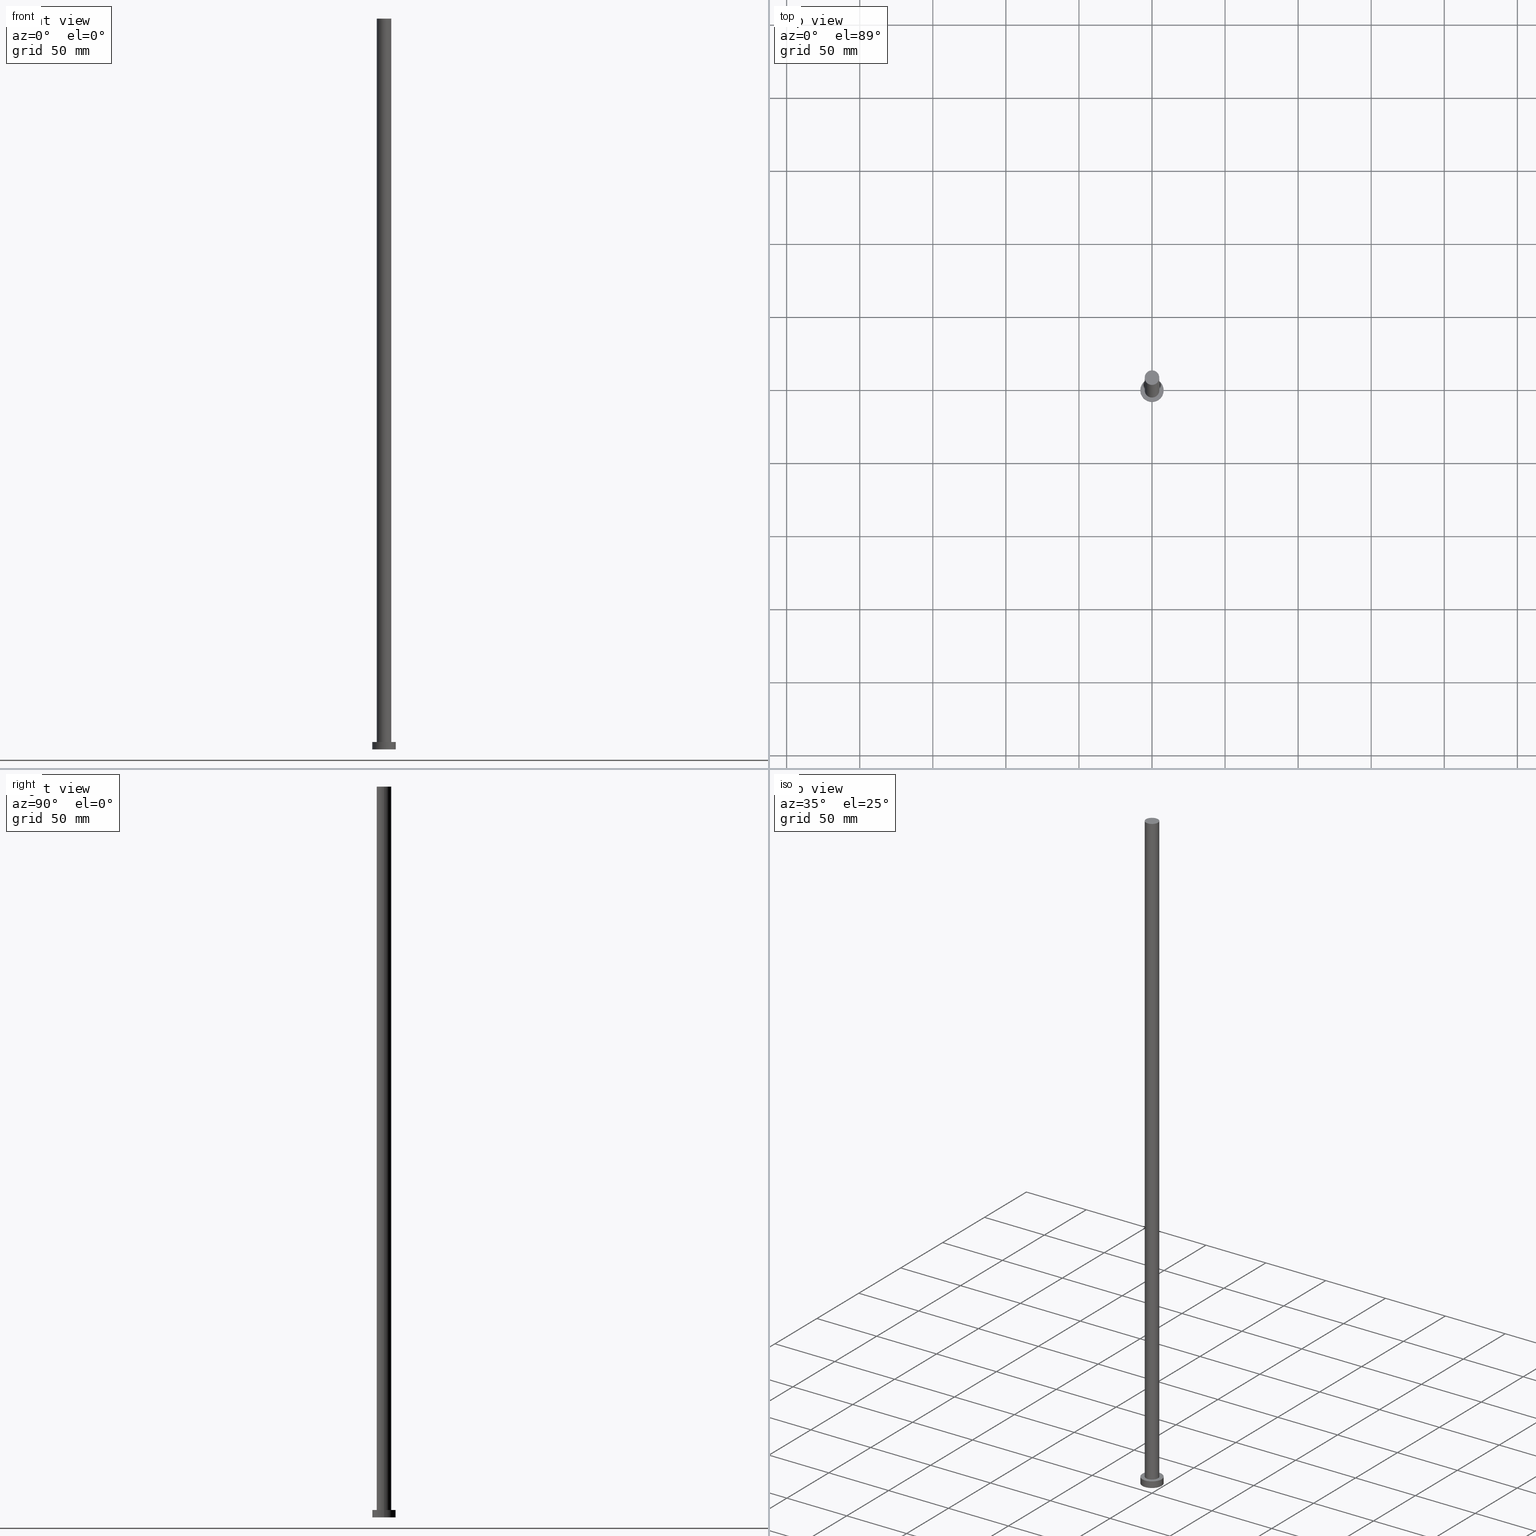
[diagram: canonical four-view strip — front | top / right | iso, engineering-drawing reading convention]
A machine part, canonical four-view strip (front | top / right | iso — engineering-drawing reading convention). The complete STEP part file that produces these views, byte-faithful:
ISO-10303-21;
HEADER;
FILE_DESCRIPTION (( 'STEP AP203' ),
    '1' );
FILE_NAME ('5d48.STEP',
    '2023-02-13T13:16:48',
    ( '' ),
    ( '' ),
    'SwSTEP 2.0',
    'SolidWorks 2019',
    '' );
FILE_SCHEMA (( 'CONFIG_CONTROL_DESIGN' ));
ENDSEC;

DATA;
#1 = PERSON_AND_ORGANIZATION ( #9, #190 ) ;
#2 = EDGE_CURVE ( 'NONE', #209, #253, #94, .T. ) ;
#3 = CALENDAR_DATE ( 2023, 13, 2 ) ;
#4 = CIRCLE ( 'NONE', #146, 5.000000000000000000 ) ;
#5 = FACE_OUTER_BOUND ( 'NONE', #140, .T. ) ;
#6 = SECURITY_CLASSIFICATION_LEVEL ( 'unclassified' ) ;
#7 = LINE ( 'NONE', #175, #214 ) ;
#8 = DIRECTION ( 'NONE',  ( 1.000000000000000000, 0.000000000000000000, 0.000000000000000000 ) ) ;
#9 = PERSON ( 'NEUR�EN�', 'NEUR�EN�', 'NEUR�EN�', ('NEUR�EN�'), ('NEUR�EN�'), ('NEUR�EN�') ) ;
#10 = CARTESIAN_POINT ( 'NONE',  ( 0.000000000000000000, 0.000000000000000000, 500.0000000000000000 ) ) ;
#11 = AXIS2_PLACEMENT_3D ( 'NONE', #196, #234, #8 ) ;
#12 = EDGE_CURVE ( 'NONE', #209, #73, #177, .T. ) ;
#13 = DIRECTION ( 'NONE',  ( 0.000000000000000000, 0.000000000000000000, 1.000000000000000000 ) ) ;
#14 = CYLINDRICAL_SURFACE ( 'NONE', #78, 8.000000000000000000 ) ;
#15 = DIRECTION ( 'NONE',  ( 1.000000000000000000, 0.000000000000000000, 0.000000000000000000 ) ) ;
#16 = ADVANCED_FACE ( 'NONE', ( #210 ), #32, .T. ) ;
#17 = EDGE_LOOP ( 'NONE', ( #181, #29 ) ) ;
#18 = ORIENTED_EDGE ( 'NONE', *, *, #212, .T. ) ;
#19 = CARTESIAN_POINT ( 'NONE',  ( 0.000000000000000000, 0.000000000000000000, 0.000000000000000000 ) ) ;
#20 = ORIENTED_EDGE ( 'NONE', *, *, #25, .F. ) ;
#21 = APPROVAL_DATE_TIME ( #204, #251 ) ;
#22 = DIRECTION ( 'NONE',  ( 0.000000000000000000, 0.000000000000000000, 1.000000000000000000 ) ) ;
#23 = PERSON_AND_ORGANIZATION_ROLE ( 'design_supplier' ) ;
#24 = DIRECTION ( 'NONE',  ( -0.000000000000000000, -0.000000000000000000, -1.000000000000000000 ) ) ;
#25 = EDGE_CURVE ( 'NONE', #73, #243, #7, .T. ) ;
#26 = AXIS2_PLACEMENT_3D ( 'NONE', #163, #45, #254 ) ;
#27 = DATE_TIME_ROLE ( 'creation_date' ) ;
#28 = PERSON_AND_ORGANIZATION ( #9, #190 ) ;
#29 = ORIENTED_EDGE ( 'NONE', *, *, #150, .T. ) ;
#30 = DIRECTION ( 'NONE',  ( -0.000000000000000000, -0.000000000000000000, -1.000000000000000000 ) ) ;
#31 = CIRCLE ( 'NONE', #43, 5.000000000000000000 ) ;
#32 = CYLINDRICAL_SURFACE ( 'NONE', #244, 8.000000000000000000 ) ;
#33 = PRODUCT ( '5d48', '5d48', '', ( #237 ) ) ;
#34 = DIRECTION ( 'NONE',  ( -0.000000000000000000, -0.000000000000000000, -1.000000000000000000 ) ) ;
#35 = CYLINDRICAL_SURFACE ( 'NONE', #250, 5.000000000000000000 ) ;
#36 = CARTESIAN_POINT ( 'NONE',  ( 0.000000000000000000, 0.000000000000000000, 5.000000000000000000 ) ) ;
#37 = VECTOR ( 'NONE', #34, 1000.000000000000000 ) ;
#38 = CYLINDRICAL_SURFACE ( 'NONE', #122, 5.000000000000000000 ) ;
#39 = VERTEX_POINT ( 'NONE', #134 ) ;
#40 = APPLICATION_PROTOCOL_DEFINITION ( 'international standard', 'config_control_design', 1994, #166 ) ;
#41 = VERTEX_POINT ( 'NONE', #110 ) ;
#42 = DIRECTION ( 'NONE',  ( -1.000000000000000000, 0.000000000000000000, 0.000000000000000000 ) ) ;
#43 = AXIS2_PLACEMENT_3D ( 'NONE', #199, #105, #61 ) ;
#44 = AXIS2_PLACEMENT_3D ( 'NONE', #82, #158, #197 ) ;
#45 = DIRECTION ( 'NONE',  ( 0.000000000000000000, 0.000000000000000000, 1.000000000000000000 ) ) ;
#46 = ADVANCED_FACE ( 'NONE', ( #5 ), #14, .T. ) ;
#47 = DIRECTION ( 'NONE',  ( 0.000000000000000000, 0.000000000000000000, 1.000000000000000000 ) ) ;
#48 = APPROVAL_ROLE ( '' ) ;
#49 = CIRCLE ( 'NONE', #229, 8.000000000000000000 ) ;
#50 = CC_DESIGN_DATE_AND_TIME_ASSIGNMENT ( #91, #27, ( #108 ) ) ;
#51 = CALENDAR_DATE ( 2023, 13, 2 ) ;
#52 = VERTEX_POINT ( 'NONE', #249 ) ;
#53 = EDGE_CURVE ( 'NONE', #253, #243, #151, .T. ) ;
#54 = DIRECTION ( 'NONE',  ( 1.000000000000000000, 0.000000000000000000, 0.000000000000000000 ) ) ;
#55 = DIRECTION ( 'NONE',  ( 0.000000000000000000, 0.000000000000000000, 1.000000000000000000 ) ) ;
#56 = DIRECTION ( 'NONE',  ( 0.000000000000000000, 0.000000000000000000, 1.000000000000000000 ) ) ;
#57 = CARTESIAN_POINT ( 'NONE',  ( 0.000000000000000000, 0.000000000000000000, 0.000000000000000000 ) ) ;
#58 = DIRECTION ( 'NONE',  ( -1.000000000000000000, 0.000000000000000000, 0.000000000000000000 ) ) ;
#59 = PRODUCT_DEFINITION_FORMATION_WITH_SPECIFIED_SOURCE ( 'LIBOVOLN�', '', #33, .NOT_KNOWN. ) ;
#60 = PLANE ( 'NONE',  #92 ) ;
#61 = DIRECTION ( 'NONE',  ( 1.000000000000000000, 0.000000000000000000, 0.000000000000000000 ) ) ;
#62 =( LENGTH_UNIT ( ) NAMED_UNIT ( * ) SI_UNIT ( .MILLI., .METRE. ) );
#63 = AXIS2_PLACEMENT_3D ( 'NONE', #75, #47, #54 ) ;
#64 = APPROVAL_PERSON_ORGANIZATION ( #242, #154, #114 ) ;
#65 = DIRECTION ( 'NONE',  ( 0.000000000000000000, 0.000000000000000000, 1.000000000000000000 ) ) ;
#66 = APPROVAL ( #186, 'NEUR�EN�' ) ;
#67 = DATE_AND_TIME ( #231, #131 ) ;
#68 = ORIENTED_EDGE ( 'NONE', *, *, #178, .F. ) ;
#69 = APPROVAL_STATUS ( 'not_yet_approved' ) ;
#70 = ORIENTED_EDGE ( 'NONE', *, *, #25, .T. ) ;
#71 = LOCAL_TIME ( 14, 16, 48.00000000000000000, #72 ) ;
#72 = COORDINATED_UNIVERSAL_TIME_OFFSET ( 1, 0, .AHEAD. ) ;
#73 = VERTEX_POINT ( 'NONE', #194 ) ;
#74 = ADVANCED_FACE ( 'NONE', ( #121 ), #97, .F. ) ;
#75 = CARTESIAN_POINT ( 'NONE',  ( 0.000000000000000000, 0.000000000000000000, 500.0000000000000000 ) ) ;
#76 = DIRECTION ( 'NONE',  ( -0.000000000000000000, -0.000000000000000000, -1.000000000000000000 ) ) ;
#77 = VECTOR ( 'NONE', #30, 1000.000000000000000 ) ;
#78 = AXIS2_PLACEMENT_3D ( 'NONE', #213, #155, #58 ) ;
#79 = CARTESIAN_POINT ( 'NONE',  ( 0.000000000000000000, 0.000000000000000000, 500.0000000000000000 ) ) ;
#80 = DIRECTION ( 'NONE',  ( -0.000000000000000000, -0.000000000000000000, -1.000000000000000000 ) ) ;
#81 = CC_DESIGN_APPROVAL ( #66, ( #165 ) ) ;
#82 = CARTESIAN_POINT ( 'NONE',  ( 0.000000000000000000, 0.000000000000000000, 0.000000000000000000 ) ) ;
#83 = ADVANCED_FACE ( 'NONE', ( #233 ), #35, .T. ) ;
#84 = CARTESIAN_POINT ( 'NONE',  ( -5.000000000000000000, 0.000000000000000000, 5.000000000000000000 ) ) ;
#85 = CARTESIAN_POINT ( 'NONE',  ( 5.000000000000000000, 6.123233995736766282E-16, 5.000000000000000000 ) ) ;
#86 = ORIENTED_EDGE ( 'NONE', *, *, #143, .T. ) ;
#87 = ADVANCED_FACE ( 'NONE', ( #123, #124 ), #60, .T. ) ;
#88 = PERSON_AND_ORGANIZATION ( #9, #190 ) ;
#89 = ORIENTED_EDGE ( 'NONE', *, *, #167, .F. ) ;
#90 = LINE ( 'NONE', #252, #101 ) ;
#91 = DATE_AND_TIME ( #3, #71 ) ;
#92 = AXIS2_PLACEMENT_3D ( 'NONE', #36, #55, #179 ) ;
#93 = COORDINATED_UNIVERSAL_TIME_OFFSET ( 1, 0, .AHEAD. ) ;
#94 = LINE ( 'NONE', #138, #77 ) ;
#95 = APPROVAL_PERSON_ORGANIZATION ( #109, #66, #48 ) ;
#96 = PERSON_AND_ORGANIZATION ( #9, #190 ) ;
#97 = PLANE ( 'NONE',  #208 ) ;
#98 = APPLICATION_CONTEXT ( 'configuration controlled 3d designs of mechanical parts and assemblies' ) ;
#99 = CARTESIAN_POINT ( 'NONE',  ( 0.000000000000000000, 0.000000000000000000, 500.0000000000000000 ) ) ;
#100 = LINE ( 'NONE', #211, #37 ) ;
#101 = VECTOR ( 'NONE', #103, 1000.000000000000000 ) ;
#102 = CARTESIAN_POINT ( 'NONE',  ( 0.000000000000000000, 0.000000000000000000, 5.000000000000000000 ) ) ;
#103 = DIRECTION ( 'NONE',  ( -0.000000000000000000, -0.000000000000000000, -1.000000000000000000 ) ) ;
#104 = VERTEX_POINT ( 'NONE', #142 ) ;
#105 = DIRECTION ( 'NONE',  ( 0.000000000000000000, 0.000000000000000000, 1.000000000000000000 ) ) ;
#106 = ORIENTED_EDGE ( 'NONE', *, *, #2, .F. ) ;
#107 = DIRECTION ( 'NONE',  ( 1.000000000000000000, 0.000000000000000000, 0.000000000000000000 ) ) ;
#108 = PRODUCT_DEFINITION ( 'NEZN�M�', '', #59, #160 ) ;
#109 = PERSON_AND_ORGANIZATION ( #9, #190 ) ;
#110 = CARTESIAN_POINT ( 'NONE',  ( 8.000000000000000000, 9.797174393178825657E-16, 5.000000000000000000 ) ) ;
#111 = ORIENTED_EDGE ( 'NONE', *, *, #53, .F. ) ;
#112 = CC_DESIGN_PERSON_AND_ORGANIZATION_ASSIGNMENT ( #96, #23, ( #59 ) ) ;
#113 = CC_DESIGN_PERSON_AND_ORGANIZATION_ASSIGNMENT ( #148, #126, ( #33 ) ) ;
#114 = APPROVAL_ROLE ( '' ) ;
#115 = ORIENTED_EDGE ( 'NONE', *, *, #53, .T. ) ;
#116 = ORIENTED_EDGE ( 'NONE', *, *, #143, .F. ) ;
#117 = CC_DESIGN_SECURITY_CLASSIFICATION ( #165, ( #59 ) ) ;
#118 = CARTESIAN_POINT ( 'NONE',  ( 0.000000000000000000, 0.000000000000000000, 5.000000000000000000 ) ) ;
#119 = EDGE_CURVE ( 'NONE', #41, #39, #100, .T. ) ;
#120 = PLANE ( 'NONE',  #144 ) ;
#121 = FACE_OUTER_BOUND ( 'NONE', #207, .T. ) ;
#122 = AXIS2_PLACEMENT_3D ( 'NONE', #206, #161, #42 ) ;
#123 = FACE_BOUND ( 'NONE', #228, .T. ) ;
#124 = FACE_OUTER_BOUND ( 'NONE', #187, .T. ) ;
#125 = LOCAL_TIME ( 14, 16, 48.00000000000000000, #93 ) ;
#126 = PERSON_AND_ORGANIZATION_ROLE ( 'design_owner' ) ;
#127 = ORIENTED_EDGE ( 'NONE', *, *, #167, .T. ) ;
#128 = ORIENTED_EDGE ( 'NONE', *, *, #162, .F. ) ;
#129 = PRODUCT_RELATED_PRODUCT_CATEGORY ( 'detail', '', ( #33 ) ) ;
#130 = COORDINATED_UNIVERSAL_TIME_OFFSET ( 1, 0, .AHEAD. ) ;
#131 = LOCAL_TIME ( 14, 16, 48.00000000000000000, #227 ) ;
#132 = PERSON_AND_ORGANIZATION_ROLE ( 'creator' ) ;
#133 = COORDINATED_UNIVERSAL_TIME_OFFSET ( 1, 0, .AHEAD. ) ;
#134 = CARTESIAN_POINT ( 'NONE',  ( 8.000000000000000000, 9.797174393178825657E-16, 0.000000000000000000 ) ) ;
#135 = DATE_AND_TIME ( #51, #236 ) ;
#136 = AXIS2_PLACEMENT_3D ( 'NONE', #235, #13, #15 ) ;
#137 = ADVANCED_FACE ( 'NONE', ( #195 ), #120, .T. ) ;
#138 = CARTESIAN_POINT ( 'NONE',  ( -5.000000000000000000, 0.000000000000000000, 500.0000000000000000 ) ) ;
#139 = DATE_AND_TIME ( #170, #125 ) ;
#140 = EDGE_LOOP ( 'NONE', ( #188, #116, #18, #245 ) ) ;
#141 = ADVANCED_BREP_SHAPE_REPRESENTATION ( '5d48', ( #230, #26 ), #223 ) ;
#142 = CARTESIAN_POINT ( 'NONE',  ( -8.000000000000000000, 0.000000000000000000, 0.000000000000000000 ) ) ;
#143 = EDGE_CURVE ( 'NONE', #52, #41, #248, .T. ) ;
#144 = AXIS2_PLACEMENT_3D ( 'NONE', #79, #56, #156 ) ;
#145 = DIRECTION ( 'NONE',  ( 0.000000000000000000, 0.000000000000000000, 1.000000000000000000 ) ) ;
#146 = AXIS2_PLACEMENT_3D ( 'NONE', #99, #145, #217 ) ;
#147 = CARTESIAN_POINT ( 'NONE',  ( -5.000000000000000000, 0.000000000000000000, 500.0000000000000000 ) ) ;
#148 = PERSON_AND_ORGANIZATION ( #9, #190 ) ;
#149 = PERSON_AND_ORGANIZATION_ROLE ( 'classification_officer' ) ;
#150 = EDGE_CURVE ( 'NONE', #73, #209, #4, .T. ) ;
#151 = CIRCLE ( 'NONE', #136, 5.000000000000000000 ) ;
#152 = APPROVAL_DATE_TIME ( #67, #66 ) ;
#153 = ORIENTED_EDGE ( 'NONE', *, *, #119, .T. ) ;
#154 = APPROVAL ( #69, 'NEUR�EN�' ) ;
#155 = DIRECTION ( 'NONE',  ( -0.000000000000000000, -0.000000000000000000, -1.000000000000000000 ) ) ;
#156 = DIRECTION ( 'NONE',  ( 1.000000000000000000, 0.000000000000000000, -0.000000000000000000 ) ) ;
#157 = CIRCLE ( 'NONE', #44, 8.000000000000000000 ) ;
#158 = DIRECTION ( 'NONE',  ( 0.000000000000000000, 0.000000000000000000, 1.000000000000000000 ) ) ;
#159 = ORIENTED_EDGE ( 'NONE', *, *, #183, .F. ) ;
#160 = DESIGN_CONTEXT ( 'detailed design', #166, 'design' ) ;
#161 = DIRECTION ( 'NONE',  ( -0.000000000000000000, -0.000000000000000000, -1.000000000000000000 ) ) ;
#162 = EDGE_CURVE ( 'NONE', #39, #104, #157, .T. ) ;
#163 = CARTESIAN_POINT ( 'NONE',  ( 0.000000000000000000, 0.000000000000000000, 0.000000000000000000 ) ) ;
#164 = SHAPE_DEFINITION_REPRESENTATION ( #176, #141 ) ;
#165 = SECURITY_CLASSIFICATION ( '', '', #6 ) ;
#166 = APPLICATION_CONTEXT ( 'configuration controlled 3d designs of mechanical parts and assemblies' ) ;
#167 = EDGE_CURVE ( 'NONE', #41, #52, #49, .T. ) ;
#168 = PERSON_AND_ORGANIZATION_ROLE ( 'creator' ) ;
#169 = CC_DESIGN_DATE_AND_TIME_ASSIGNMENT ( #135, #173, ( #165 ) ) ;
#170 = CALENDAR_DATE ( 2023, 13, 2 ) ;
#171 = ORIENTED_EDGE ( 'NONE', *, *, #162, .T. ) ;
#172 = LOCAL_TIME ( 14, 16, 48.00000000000000000, #130 ) ;
#173 = DATE_TIME_ROLE ( 'classification_date' ) ;
#174 = ORIENTED_EDGE ( 'NONE', *, *, #150, .F. ) ;
#175 = CARTESIAN_POINT ( 'NONE',  ( 5.000000000000000000, 6.123233995736766282E-16, 500.0000000000000000 ) ) ;
#176 = PRODUCT_DEFINITION_SHAPE ( 'NONE', 'NONE',  #108 ) ;
#177 = CIRCLE ( 'NONE', #63, 5.000000000000000000 ) ;
#178 = EDGE_CURVE ( 'NONE', #104, #39, #191, .T. ) ;
#179 = DIRECTION ( 'NONE',  ( 1.000000000000000000, 0.000000000000000000, -0.000000000000000000 ) ) ;
#180 = DIRECTION ( 'NONE',  ( 1.000000000000000000, 0.000000000000000000, 0.000000000000000000 ) ) ;
#181 = ORIENTED_EDGE ( 'NONE', *, *, #12, .T. ) ;
#182 = APPROVAL_PERSON_ORGANIZATION ( #88, #251, #222 ) ;
#183 = EDGE_CURVE ( 'NONE', #243, #253, #31, .T. ) ;
#184 = CALENDAR_DATE ( 2023, 13, 2 ) ;
#185 = CLOSED_SHELL ( 'NONE', ( #198, #16, #46, #87, #74, #83, #137 ) ) ;
#186 = APPROVAL_STATUS ( 'not_yet_approved' ) ;
#187 = EDGE_LOOP ( 'NONE', ( #86, #127 ) ) ;
#188 = ORIENTED_EDGE ( 'NONE', *, *, #119, .F. ) ;
#189 = ORIENTED_EDGE ( 'NONE', *, *, #2, .T. ) ;
#190 = ORGANIZATION ( 'NEUR�EN�', 'NEUR�EN�', '' ) ;
#191 = CIRCLE ( 'NONE', #215, 8.000000000000000000 ) ;
#192 = DIRECTION ( 'NONE',  ( -1.000000000000000000, 0.000000000000000000, 0.000000000000000000 ) ) ;
#193 = DIRECTION ( 'NONE',  ( -1.000000000000000000, 0.000000000000000000, 0.000000000000000000 ) ) ;
#194 = CARTESIAN_POINT ( 'NONE',  ( 5.000000000000000000, 6.123233995736766282E-16, 500.0000000000000000 ) ) ;
#195 = FACE_OUTER_BOUND ( 'NONE', #17, .T. ) ;
#196 = CARTESIAN_POINT ( 'NONE',  ( 0.000000000000000000, 0.000000000000000000, 5.000000000000000000 ) ) ;
#197 = DIRECTION ( 'NONE',  ( 1.000000000000000000, 0.000000000000000000, 0.000000000000000000 ) ) ;
#198 = ADVANCED_FACE ( 'NONE', ( #239 ), #38, .T. ) ;
#199 = CARTESIAN_POINT ( 'NONE',  ( 0.000000000000000000, 0.000000000000000000, 5.000000000000000000 ) ) ;
#200 = ORIENTED_EDGE ( 'NONE', *, *, #212, .F. ) ;
#201 = APPROVAL_STATUS ( 'not_yet_approved' ) ;
#202 = EDGE_LOOP ( 'NONE', ( #20, #226, #189, #115 ) ) ;
#203 = CC_DESIGN_APPROVAL ( #154, ( #59 ) ) ;
#204 = DATE_AND_TIME ( #184, #172 ) ;
#205 = CC_DESIGN_PERSON_AND_ORGANIZATION_ASSIGNMENT ( #1, #132, ( #108 ) ) ;
#206 = CARTESIAN_POINT ( 'NONE',  ( 0.000000000000000000, 0.000000000000000000, 500.0000000000000000 ) ) ;
#207 = EDGE_LOOP ( 'NONE', ( #68, #128 ) ) ;
#208 = AXIS2_PLACEMENT_3D ( 'NONE', #57, #216, #247 ) ;
#209 = VERTEX_POINT ( 'NONE', #147 ) ;
#210 = FACE_OUTER_BOUND ( 'NONE', #246, .T. ) ;
#211 = CARTESIAN_POINT ( 'NONE',  ( 8.000000000000000000, 9.797174393178825657E-16, 5.000000000000000000 ) ) ;
#212 = EDGE_CURVE ( 'NONE', #52, #104, #90, .T. ) ;
#213 = CARTESIAN_POINT ( 'NONE',  ( 0.000000000000000000, 0.000000000000000000, 5.000000000000000000 ) ) ;
#214 = VECTOR ( 'NONE', #76, 1000.000000000000000 ) ;
#215 = AXIS2_PLACEMENT_3D ( 'NONE', #19, #22, #107 ) ;
#216 = DIRECTION ( 'NONE',  ( 0.000000000000000000, 0.000000000000000000, 1.000000000000000000 ) ) ;
#217 = DIRECTION ( 'NONE',  ( 1.000000000000000000, 0.000000000000000000, 0.000000000000000000 ) ) ;
#218 = CC_DESIGN_APPROVAL ( #251, ( #108 ) ) ;
#219 = CC_DESIGN_PERSON_AND_ORGANIZATION_ASSIGNMENT ( #225, #149, ( #165 ) ) ;
#220 =( NAMED_UNIT ( * ) SI_UNIT ( $, .STERADIAN. ) SOLID_ANGLE_UNIT ( ) );
#221 = ORIENTED_EDGE ( 'NONE', *, *, #183, .T. ) ;
#222 = APPROVAL_ROLE ( '' ) ;
#223 =( GEOMETRIC_REPRESENTATION_CONTEXT ( 3 ) GLOBAL_UNCERTAINTY_ASSIGNED_CONTEXT ( ( #255 ) ) GLOBAL_UNIT_ASSIGNED_CONTEXT ( ( #62, #240, #220 ) ) REPRESENTATION_CONTEXT ( 'NONE', 'WORKASPACE' ) );
#224 = APPLICATION_PROTOCOL_DEFINITION ( 'international standard', 'config_control_design', 1994, #98 ) ;
#225 = PERSON_AND_ORGANIZATION ( #9, #190 ) ;
#226 = ORIENTED_EDGE ( 'NONE', *, *, #12, .F. ) ;
#227 = COORDINATED_UNIVERSAL_TIME_OFFSET ( 1, 0, .AHEAD. ) ;
#228 = EDGE_LOOP ( 'NONE', ( #111, #159 ) ) ;
#229 = AXIS2_PLACEMENT_3D ( 'NONE', #102, #65, #180 ) ;
#230 = MANIFOLD_SOLID_BREP ( 'P�idat vysunut�m3', #185 ) ;
#231 = CALENDAR_DATE ( 2023, 13, 2 ) ;
#232 = CC_DESIGN_PERSON_AND_ORGANIZATION_ASSIGNMENT ( #28, #168, ( #59 ) ) ;
#233 = FACE_OUTER_BOUND ( 'NONE', #202, .T. ) ;
#234 = DIRECTION ( 'NONE',  ( 0.000000000000000000, 0.000000000000000000, 1.000000000000000000 ) ) ;
#235 = CARTESIAN_POINT ( 'NONE',  ( 0.000000000000000000, 0.000000000000000000, 5.000000000000000000 ) ) ;
#236 = LOCAL_TIME ( 14, 16, 48.00000000000000000, #133 ) ;
#237 = MECHANICAL_CONTEXT ( 'NONE', #98, 'mechanical' ) ;
#238 = EDGE_LOOP ( 'NONE', ( #174, #70, #221, #106 ) ) ;
#239 = FACE_OUTER_BOUND ( 'NONE', #238, .T. ) ;
#240 =( NAMED_UNIT ( * ) PLANE_ANGLE_UNIT ( ) SI_UNIT ( $, .RADIAN. ) );
#241 = APPROVAL_DATE_TIME ( #139, #154 ) ;
#242 = PERSON_AND_ORGANIZATION ( #9, #190 ) ;
#243 = VERTEX_POINT ( 'NONE', #85 ) ;
#244 = AXIS2_PLACEMENT_3D ( 'NONE', #118, #24, #192 ) ;
#245 = ORIENTED_EDGE ( 'NONE', *, *, #178, .T. ) ;
#246 = EDGE_LOOP ( 'NONE', ( #89, #153, #171, #200 ) ) ;
#247 = DIRECTION ( 'NONE',  ( 1.000000000000000000, 0.000000000000000000, -0.000000000000000000 ) ) ;
#248 = CIRCLE ( 'NONE', #11, 8.000000000000000000 ) ;
#249 = CARTESIAN_POINT ( 'NONE',  ( -8.000000000000000000, 0.000000000000000000, 5.000000000000000000 ) ) ;
#250 = AXIS2_PLACEMENT_3D ( 'NONE', #10, #80, #193 ) ;
#251 = APPROVAL ( #201, 'NEUR�EN�' ) ;
#252 = CARTESIAN_POINT ( 'NONE',  ( -8.000000000000000000, 0.000000000000000000, 5.000000000000000000 ) ) ;
#253 = VERTEX_POINT ( 'NONE', #84 ) ;
#254 = DIRECTION ( 'NONE',  ( 1.000000000000000000, 0.000000000000000000, 0.000000000000000000 ) ) ;
#255 = UNCERTAINTY_MEASURE_WITH_UNIT (LENGTH_MEASURE( 1.000000000000000082E-05 ), #62, 'distance_accuracy_value', 'NONE');
ENDSEC;
END-ISO-10303-21;
